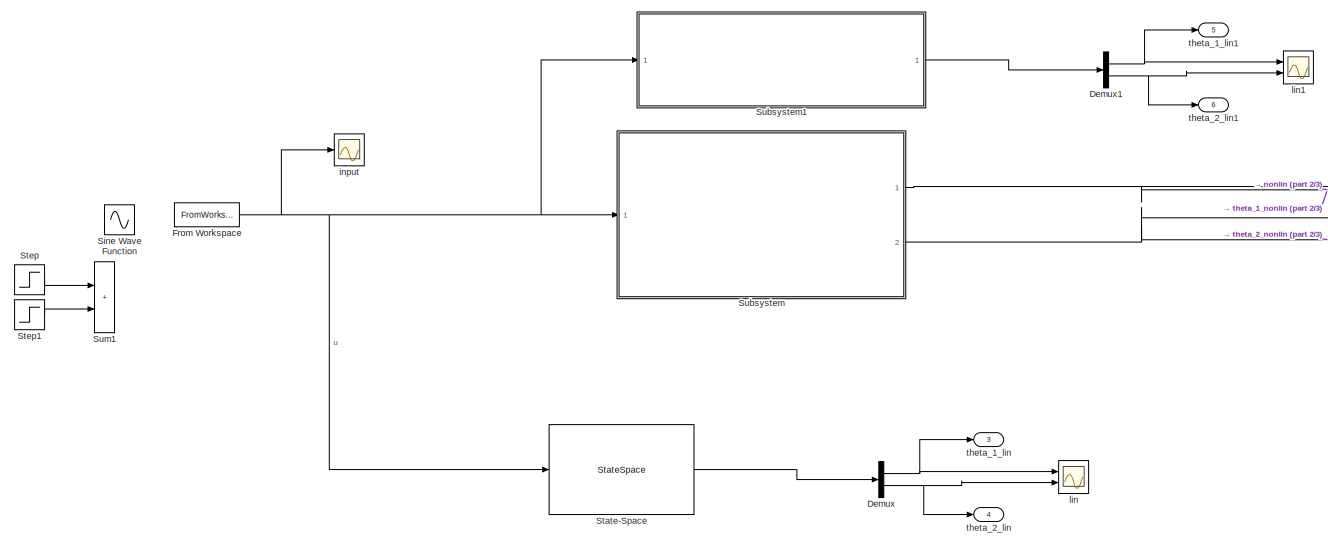
[diagram: root canvas - part 1/3, top left region]
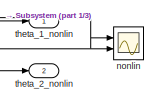
[diagram: root canvas - part 2/3, top right region]
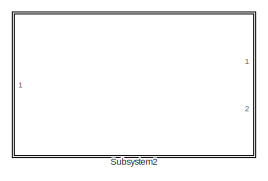
[diagram: root canvas - part 3/3, bottom right region]
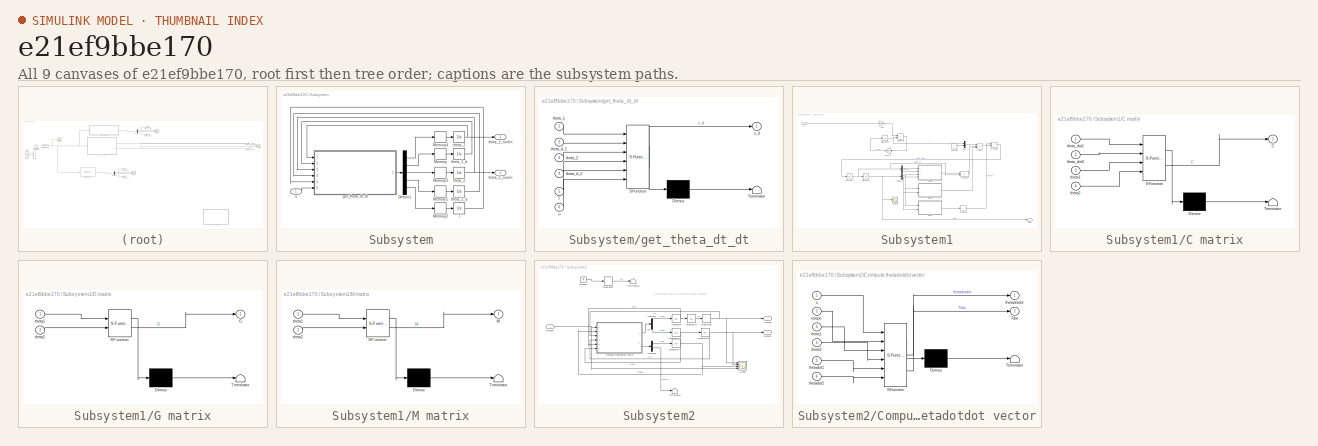
[diagram: thumbnail index - all 9 canvases of the model, root first then tree order]
MODEL mdl_e21ef9bbe170
KIND model
CONFIG AbsTol = auto
CONFIG EnableMultiTasking = off
CONFIG FixedStep = auto
CONFIG MaxStep = auto
CONFIG MinStep = auto
CONFIG RelTol = 1e-3
CONFIG SampleTimeConstraint = Unconstrained
CONFIG SolverName = VariableStepAuto
CONFIG StartTime = 0.0
CONFIG StopTime = 10.0
BLOCK [Demux] Demux
  Outputs = 2
  Ports = [1, 2]
BLOCK [Demux] Demux1
  Outputs = 2
  Ports = [1, 2]
BLOCK [FromWorkspace] From Workspace
  SampleTime = -1
BLOCK [Sin] Sine Wave Function
  Amplitude = 0.05
  Frequency = 2*pi*2
  Ports = [0, 1]
  SampleTime = 0.001
BLOCK [StateSpace] State-Space
  A = A
  B = B
  C = C
  D = D
  InitialCondition = x_op-x_op
  Ports = [1, 1]
BLOCK [Step] Step
  Time = 0
BLOCK [Step] Step1
  After = -1
  Time = 0.05
BLOCK [SubSystem] Subsystem
  Ports = [1, 2]
  RequestExecContextInheritance = off
BLOCK [Demux] Subsystem/Demux1
  Outputs = 5
  Ports = [1, 5]
BLOCK [Memory] Subsystem/Memory
BLOCK [Memory] Subsystem/Memory1
BLOCK [Memory] Subsystem/Memory2
BLOCK [Memory] Subsystem/Memory3
BLOCK [Memory] Subsystem/Memory4
BLOCK [Integrator] Subsystem/T
  Ports = [1, 1]
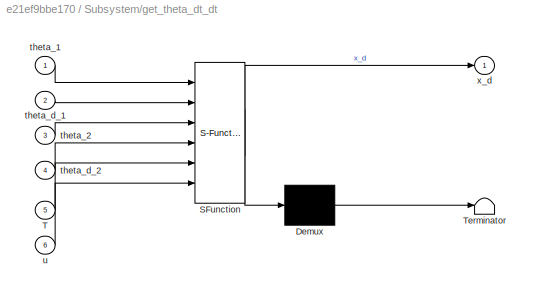
BLOCK [SubSystem] Subsystem/get_theta_dt_dt
  ErrorFcn = Stateflow.Translate.translate
  PermitHierarchicalResolution = ExplicitOnly
  Ports = [6, 1]
  RequestExecContextInheritance = off
  SFBlockType = MATLAB Function
  TreatAsAtomicUnit = on
BLOCK [Demux] Subsystem/get_theta_dt_dt/ Demux 
  Outputs = 1
  Ports = [1, 1]
BLOCK [S-Function] Subsystem/get_theta_dt_dt/ SFunction 
  EnableBusSupport = on
  FunctionName = sf_sfun
  PortCounts = [6 2]
  Ports = [6, 2]
  SFcnIsStateOwnerBlock = off
  SFunctionDeploymentMode = off
  Tag = Stateflow S-Function 22
BLOCK [Terminator] Subsystem/get_theta_dt_dt/ Terminator 
BLOCK [Inport] Subsystem/get_theta_dt_dt/T
  Port = 5
BLOCK [Inport] Subsystem/get_theta_dt_dt/theta_1
BLOCK [Inport] Subsystem/get_theta_dt_dt/theta_2
  Port = 3
BLOCK [Inport] Subsystem/get_theta_dt_dt/theta_d_1
  Port = 2
BLOCK [Inport] Subsystem/get_theta_dt_dt/theta_d_2
  Port = 4
BLOCK [Inport] Subsystem/get_theta_dt_dt/u
  Port = 6
BLOCK [Outport] Subsystem/get_theta_dt_dt/x_d
  VectorParamsAs1DForOutWhenUnconnected = off
BLOCK [Integrator] Subsystem/theta_1
  InitialCondition = theta_1_0
  Ports = [1, 1]
BLOCK [Integrator] Subsystem/theta_1_d
  Ports = [1, 1]
BLOCK [Outport] Subsystem/theta_1_nonlin
BLOCK [Integrator] Subsystem/theta_2
  InitialCondition = theta_2_0
  Ports = [1, 1]
BLOCK [Integrator] Subsystem/theta_2_d
  Ports = [1, 1]
BLOCK [Outport] Subsystem/theta_2_nonlin
  Port = 2
BLOCK [Inport] Subsystem/u
BLOCK [SubSystem] Subsystem1
  Ports = [1, 1]
  RequestExecContextInheritance = off
BLOCK [Sum] Subsystem1/Add1
  IconShape = rectangular
  Inputs = +--
  Ports = [3, 1]
BLOCK [SubSystem] Subsystem1/C matrix
  ErrorFcn = Stateflow.Translate.translate
  PermitHierarchicalResolution = ExplicitOnly
  Ports = [4, 1]
  RequestExecContextInheritance = off
  SFBlockType = MATLAB Function
  TreatAsAtomicUnit = on
BLOCK [Demux] Subsystem1/C matrix/ Demux 
  Outputs = 1
  Ports = [1, 1]
BLOCK [S-Function] Subsystem1/C matrix/ SFunction 
  EnableBusSupport = on
  FunctionName = sf_sfun
  Parameters = P3,params
  PortCounts = [4 2]
  Ports = [4, 2]
  SFcnIsStateOwnerBlock = off
  SFunctionDeploymentMode = off
  Tag = Stateflow S-Function 4
BLOCK [Terminator] Subsystem1/C matrix/ Terminator 
BLOCK [Outport] Subsystem1/C matrix/C
BLOCK [Inport] Subsystem1/C matrix/theta1
  Port = 3
BLOCK [Inport] Subsystem1/C matrix/theta2
  Port = 4
BLOCK [Inport] Subsystem1/C matrix/theta_dot1
BLOCK [Inport] Subsystem1/C matrix/theta_dot2
  Port = 2
BLOCK [Constant] Subsystem1/Constant9
  Value = 0
BLOCK [Demux] Subsystem1/Demux3
  Outputs = 2
  Ports = [1, 2]
BLOCK [Demux] Subsystem1/Demux4
  Outputs = 2
  Ports = [1, 2]
BLOCK [SubSystem] Subsystem1/G matrix
  ErrorFcn = Stateflow.Translate.translate
  PermitHierarchicalResolution = ExplicitOnly
  Ports = [2, 1]
  RequestExecContextInheritance = off
  SFBlockType = MATLAB Function
  TreatAsAtomicUnit = on
BLOCK [Demux] Subsystem1/G matrix/ Demux 
  Outputs = 1
  Ports = [1, 1]
BLOCK [S-Function] Subsystem1/G matrix/ SFunction 
  EnableBusSupport = on
  FunctionName = sf_sfun
  Parameters = g1,g2
  PortCounts = [2 2]
  Ports = [2, 2]
  SFcnIsStateOwnerBlock = off
  SFunctionDeploymentMode = off
  Tag = Stateflow S-Function 5
BLOCK [Terminator] Subsystem1/G matrix/ Terminator 
BLOCK [Outport] Subsystem1/G matrix/G
BLOCK [Inport] Subsystem1/G matrix/theta1
BLOCK [Inport] Subsystem1/G matrix/theta2
  Port = 2
BLOCK [Integrator] Subsystem1/Integrator3
  Ports = [1, 1]
BLOCK [Integrator] Subsystem1/Integrator4
  InitialCondition = [theta_1_0, theta_2_0]
  Ports = [1, 1]
BLOCK [Integrator] Subsystem1/Integrator5
  Ports = [1, 1]
BLOCK [Gain] Subsystem1/Km
  Gain = params(12)
BLOCK [SubSystem] Subsystem1/M matrix
  ErrorFcn = Stateflow.Translate.translate
  PermitHierarchicalResolution = ExplicitOnly
  Ports = [2, 1]
  RequestExecContextInheritance = off
  SFBlockType = MATLAB Function
  TreatAsAtomicUnit = on
BLOCK [Demux] Subsystem1/M matrix/ Demux 
  Outputs = 1
  Ports = [1, 1]
BLOCK [S-Function] Subsystem1/M matrix/ SFunction 
  EnableBusSupport = on
  FunctionName = sf_sfun
  Parameters = P1,P2,P3
  PortCounts = [2 2]
  Ports = [2, 2]
  SFcnIsStateOwnerBlock = off
  SFunctionDeploymentMode = off
  Tag = Stateflow S-Function 6
BLOCK [Terminator] Subsystem1/M matrix/ Terminator 
BLOCK [Outport] Subsystem1/M matrix/M
BLOCK [Inport] Subsystem1/M matrix/theta1
BLOCK [Inport] Subsystem1/M matrix/theta2
  Port = 2
BLOCK [Mux] Subsystem1/Mux1
  DisplayOption = bar
  Inputs = 2
  Ports = [2, 1]
BLOCK [Product] Subsystem1/Product1
  Inputs = **
  Multiplication = Matrix(*)
  Ports = [2, 1]
BLOCK [Product] Subsystem1/Product4
  Inputs = /
  Multiplication = Matrix(*)
  Ports = [1, 1]
BLOCK [Product] Subsystem1/Product5
  Inputs = **
  Multiplication = Matrix(*)
  Ports = [2, 1]
BLOCK [Scope] Subsystem1/Scope1
  Floating = off
  NumInputPorts = 1
  Ports = [1]
  ScopeSpecificationString = Simulink.scopes.TimeScopeBlockCfg('CurrentConfiguration', extmgr.ConfigurationSet(extmgr.Configuration('Core','General UI',true),extmgr.Configuration('Core','Source UI',true),extmgr.Configuration('Sources','WiredSimulink',true,'DataLoggingVariableName','ScopeData1'),extmgr.Configuration('Visuals','Time Domain',true,'SerializedDisplays',{struct('MinYLimReal','-9.21174','MaxYLimReal','7.66748','YLab...<+1428ch>
BLOCK [Sum] Subsystem1/Subtract1
  IconShape = rectangular
  Inputs = +-
  Ports = [2, 1]
BLOCK [Gain] Subsystem1/tau_e
  Gain = 1/params(13)
BLOCK [Outport] Subsystem1/theta
BLOCK [Inport] Subsystem1/u
BLOCK [SubSystem] Subsystem2
  Commented = on
  Ports = [1, 2]
  RequestExecContextInheritance = off
BLOCK [Backlash] Subsystem2/Backlash1
  BacklashWidth = 0.0087
BLOCK [Backlash] Subsystem2/Backlash2
  BacklashWidth = 0.0087
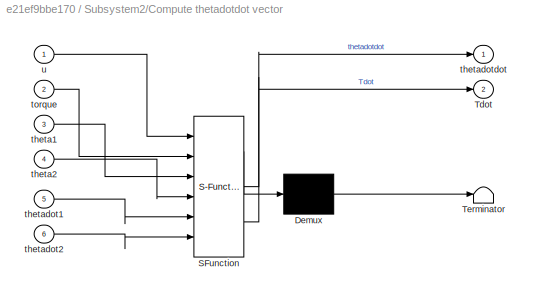
BLOCK [SubSystem] Subsystem2/Compute thetadotdot vector
  ErrorFcn = Stateflow.Translate.translate
  PermitHierarchicalResolution = ExplicitOnly
  Ports = [6, 2]
  RequestExecContextInheritance = off
  SFBlockType = MATLAB Function
  TreatAsAtomicUnit = on
BLOCK [Demux] Subsystem2/Compute thetadotdot vector/ Demux 
  Outputs = 1
  Ports = [1, 1]
BLOCK [S-Function] Subsystem2/Compute thetadotdot vector/ SFunction 
  EnableBusSupport = on
  FunctionName = sf_sfun
  Parameters = I1,I2,b1,b2,c1,c2,km,l1,l2,m1,m2,tau_e
  PortCounts = [6 3]
  Ports = [6, 3]
  SFcnIsStateOwnerBlock = off
  SFunctionDeploymentMode = off
  Tag = Stateflow S-Function 2
BLOCK [Terminator] Subsystem2/Compute thetadotdot vector/ Terminator 
BLOCK [Outport] Subsystem2/Compute thetadotdot vector/Tdot
  Port = 2
BLOCK [Inport] Subsystem2/Compute thetadotdot vector/theta1
  Port = 3
BLOCK [Inport] Subsystem2/Compute thetadotdot vector/theta2
  Port = 4
BLOCK [Inport] Subsystem2/Compute thetadotdot vector/thetadot1
  Port = 5
BLOCK [Inport] Subsystem2/Compute thetadotdot vector/thetadot2
  Port = 6
BLOCK [Outport] Subsystem2/Compute thetadotdot vector/thetadotdot
BLOCK [Inport] Subsystem2/Compute thetadotdot vector/torque
  Port = 2
BLOCK [Inport] Subsystem2/Compute thetadotdot vector/u
BLOCK [Demux] Subsystem2/Demux2
  Outputs = 2
  Ports = [1, 2]
BLOCK [Demux] Subsystem2/Demux3
  Outputs = 2
  Ports = [1, 2]
BLOCK [Ground] Subsystem2/Ground
BLOCK [Integrator] Subsystem2/Integrator
  Ports = [1, 1]
BLOCK [Integrator] Subsystem2/Integrator1
  Ports = [1, 1]
BLOCK [Integrator] Subsystem2/Integrator2
  InitialCondition = theta_1_0
  Ports = [1, 1]
BLOCK [Integrator] Subsystem2/Integrator3
  InitialCondition = theta_2_0
  Ports = [1, 1]
BLOCK [Integrator] Subsystem2/Integrator4
  Ports = [1, 1]
BLOCK [Outport] Subsystem2/Output
BLOCK [Outport] Subsystem2/Output1
  Port = 2
BLOCK [Scope] Subsystem2/Scope
  Floating = off
  NumInputPorts = 4
  Ports = [4]
  ScopeSpecificationString = Simulink.scopes.TimeScopeBlockCfg('CurrentConfiguration', extmgr.ConfigurationSet(extmgr.Configuration('Core','General UI',true),extmgr.Configuration('Core','Source UI',true),extmgr.Configuration('Sources','WiredSimulink',true,'DataLoggingVariableName','ScopeData1'),extmgr.Configuration('Visuals','Time Domain',true,'SerializedDisplays',{struct('MinYLimReal','-3.26843','MaxYLimReal','28.18469','YLa...<+2660ch>
BLOCK [Terminator] Subsystem2/Terminator
BLOCK [Terminator] Subsystem2/Terminator1
BLOCK [Inport] Subsystem2/voltage
BLOCK [Sum] Sum1
  IconShape = rectangular
  Ports = [2, 1]
BLOCK [Scope] input
  Floating = off
  NumInputPorts = 1
  Ports = [1]
  ScopeSpecificationString = Simulink.scopes.TimeScopeBlockCfg('CurrentConfiguration', extmgr.ConfigurationSet(extmgr.Configuration('Core','General UI',true),extmgr.Configuration('Core','Source UI',true),extmgr.Configuration('Sources','WiredSimulink',true,'DataLoggingVariableName','ScopeData1'),extmgr.Configuration('Visuals','Time Domain',true,'SerializedDisplays',{struct('MinYLimReal','-0.0625','MaxYLimReal','0.0625','YLabel...<+1394ch>
BLOCK [Scope] lin
  Floating = off
  NumInputPorts = 2
  Ports = [2]
  ScopeSpecificationString = Simulink.scopes.TimeScopeBlockCfg('CurrentConfiguration', extmgr.ConfigurationSet(extmgr.Configuration('Core','General UI',true),extmgr.Configuration('Core','Source UI',true),extmgr.Configuration('Sources','WiredSimulink',true),extmgr.Configuration('Visuals','Time Domain',true,'SerializedDisplays',{struct('MinYLimReal','2.54303','MaxYLimReal','3.23909','YLabelReal','','MinYLimMag','2.54303','MaxYL...<+2114ch>
BLOCK [Scope] lin1
  Floating = off
  NumInputPorts = 2
  Ports = [2]
  ScopeSpecificationString = Simulink.scopes.TimeScopeBlockCfg('CurrentConfiguration', extmgr.ConfigurationSet(extmgr.Configuration('Core','General UI',true),extmgr.Configuration('Core','Source UI',true),extmgr.Configuration('Sources','WiredSimulink',true,'DataLoggingVariableName','ScopeData2'),extmgr.Configuration('Visuals','Time Domain',true,'SerializedDisplays',{struct('MinYLimReal','2.54303','MaxYLimReal','3.23909','YLabe...<+2153ch>
BLOCK [Scope] nonlin
  Floating = off
  NumInputPorts = 2
  Ports = [2]
  ScopeSpecificationString = Simulink.scopes.TimeScopeBlockCfg('CurrentConfiguration', extmgr.ConfigurationSet(extmgr.Configuration('Core','General UI',true),extmgr.Configuration('Core','Source UI',true),extmgr.Configuration('Sources','WiredSimulink',true,'DataLoggingVariableName','ScopeData1'),extmgr.Configuration('Visuals','Time Domain',true,'SerializedDisplays',{struct('MinYLimReal','2.36604','MaxYLimReal','4.12385','YLabe...<+2177ch>
BLOCK [Outport] theta_1_lin
  NameLocation = right
  Port = 3
BLOCK [Outport] theta_1_lin1
  NameLocation = right
  Port = 5
BLOCK [Outport] theta_1_nonlin
  NameLocation = right
BLOCK [Outport] theta_2_lin
  NameLocation = right
  Port = 4
BLOCK [Outport] theta_2_lin1
  NameLocation = right
  Port = 6
BLOCK [Outport] theta_2_nonlin
  NameLocation = right
  Port = 2
ANNOTATION Subsystem2: CHANGE INITIAL CONDITIONS HERE
NET Demux1:1 -> lin1:1, theta_1_lin1:1
NET Demux1:2 -> lin1:2, theta_2_lin1:1
NET Demux:1 -> lin:1, theta_1_lin:1
NET Demux:2 -> lin:2, theta_2_lin:1
NET From Workspace:1 -> State-Space:1, Subsystem1:1, Subsystem:1, input:1
LINE State-Space:1 -> Demux:1
LINE Step1:1 -> Sum1:2
LINE Step:1 -> Sum1:1
LINE Subsystem/Demux1:1 -> Subsystem/Memory4:1
LINE Subsystem/Demux1:2 -> Subsystem/Memory:1
LINE Subsystem/Demux1:3 -> Subsystem/Memory3:1
LINE Subsystem/Demux1:4 -> Subsystem/Memory1:1
LINE Subsystem/Demux1:5 -> Subsystem/Memory2:1
LINE Subsystem/Memory1:1 -> Subsystem/theta_2_d:1
LINE Subsystem/Memory2:1 -> Subsystem/T:1
LINE Subsystem/Memory3:1 -> Subsystem/theta_2:1
LINE Subsystem/Memory4:1 -> Subsystem/theta_1:1
LINE Subsystem/Memory:1 -> Subsystem/theta_1_d:1
LINE Subsystem/T:1 -> Subsystem/get_theta_dt_dt:5
LINE Subsystem/get_theta_dt_dt:1 -> Subsystem/Demux1:1
NET Subsystem/theta_1:1 -> Subsystem/get_theta_dt_dt:1, Subsystem/theta_1_nonlin:1
LINE Subsystem/theta_1_d:1 -> Subsystem/get_theta_dt_dt:2
NET Subsystem/theta_2:1 -> Subsystem/get_theta_dt_dt:3, Subsystem/theta_2_nonlin:1
LINE Subsystem/theta_2_d:1 -> Subsystem/get_theta_dt_dt:4
LINE Subsystem/u:1 -> Subsystem/get_theta_dt_dt:6
LINE Subsystem1/Add1:1 -> Subsystem1/Product5:2
LINE Subsystem1/C matrix:1 -> Subsystem1/Product1:1
LINE Subsystem1/Constant9:1 -> Subsystem1/Mux1:2
LINE Subsystem1/Demux3:1 -> Subsystem1/C matrix:1
LINE Subsystem1/Demux3:2 -> Subsystem1/C matrix:2
NET Subsystem1/Demux4:1 -> Subsystem1/C matrix:3, Subsystem1/G matrix:1, Subsystem1/M matrix:1
NET Subsystem1/Demux4:2 -> Subsystem1/C matrix:4, Subsystem1/G matrix:2, Subsystem1/M matrix:2
LINE Subsystem1/G matrix:1 -> Subsystem1/Add1:3
NET Subsystem1/Integrator3:1 -> Subsystem1/Demux3:1, Subsystem1/Integrator4:1, Subsystem1/Product1:2
NET Subsystem1/Integrator4:1 -> Subsystem1/Demux4:1, Subsystem1/Scope1:1, Subsystem1/theta:1
NET Subsystem1/Integrator5:1 -> Subsystem1/Mux1:1, Subsystem1/Subtract1:2
LINE Subsystem1/Km:1 -> Subsystem1/Subtract1:1
LINE Subsystem1/M matrix:1 -> Subsystem1/Product4:1
LINE Subsystem1/Mux1:1 -> Subsystem1/Add1:1
LINE Subsystem1/Product1:1 -> Subsystem1/Add1:2
LINE Subsystem1/Product4:1 -> Subsystem1/Product5:1
LINE Subsystem1/Product5:1 -> Subsystem1/Integrator3:1
LINE Subsystem1/Subtract1:1 -> Subsystem1/tau_e:1
LINE Subsystem1/tau_e:1 -> Subsystem1/Integrator5:1
LINE Subsystem1/u:1 -> Subsystem1/Km:1
LINE Subsystem1:1 -> Demux1:1
NET Subsystem2/Backlash1:1 -> Subsystem2/Compute thetadotdot vector:3, Subsystem2/Output:1, Subsystem2/Scope:1
LINE Subsystem2/Backlash2:1 -> Subsystem2/Terminator1:1
LINE Subsystem2/Compute thetadotdot vector:1 -> Subsystem2/Demux2:1
LINE Subsystem2/Compute thetadotdot vector:2 -> Subsystem2/Demux3:1
LINE Subsystem2/Demux2:1 -> Subsystem2/Integrator:1
LINE Subsystem2/Demux2:2 -> Subsystem2/Integrator1:1
LINE Subsystem2/Demux3:1 -> Subsystem2/Integrator4:1
LINE Subsystem2/Demux3:2 -> Subsystem2/Terminator:1
LINE Subsystem2/Ground:1 -> Subsystem2/Backlash2:1
NET Subsystem2/Integrator1:1 -> Subsystem2/Compute thetadotdot vector:6, Subsystem2/Integrator3:1
LINE Subsystem2/Integrator2:1 -> Subsystem2/Backlash1:1
NET Subsystem2/Integrator3:1 -> Subsystem2/Compute thetadotdot vector:4, Subsystem2/Output1:1, Subsystem2/Scope:2
NET Subsystem2/Integrator4:1 -> Subsystem2/Compute thetadotdot vector:2, Subsystem2/Scope:3
NET Subsystem2/Integrator:1 -> Subsystem2/Compute thetadotdot vector:5, Subsystem2/Integrator2:1
NET Subsystem2/voltage:1 -> Subsystem2/Compute thetadotdot vector:1, Subsystem2/Scope:4
NET Subsystem:1 -> nonlin:1, theta_1_nonlin:1
NET Subsystem:2 -> nonlin:2, theta_2_nonlin:1
note: NET lines group one-source signal fan-out (src -> all destinations, sorted); 1:1 wires keep LINE
CHART Subsystem2/Compute thetadotdot vector states=1 transitions=1
  STATE_LABEL 'eML_blk_kernel()'
  STATE_LABEL 'SCRIPT:\nfunction [thetadotdot, Tdot]  = get_thetadotdot(u, torque, theta1, theta2, thetadot1, thetadot2, l1, l2, m1, m2, c1, c2, I1, I2, b1, b2, km, tau_e)\n%% Parameters (SI Units)\ng = 9.81;\n%% Variables of the model\nth1 = theta1;\nth2 = theta2;\nth1d = thetadot1;\nth2d = thetadot2;\nthd_vec = [th1d ; th2d];\nthetadotdot = [0 ; 0];\nT_vec = [torque ; 0];\n\n%% Matrices of physical model\nP1 = m1 * c1 * c1 ...<+495ch>'
CHART Subsystem1/C matrix states=1 transitions=1
  STATE_LABEL 'eML_blk_kernel()'
  STATE_LABEL 'SCRIPT:\nfunction C = C(theta_dot1, theta_dot2, theta1, theta2, params, P3)\nc00 = params(10) - P3 * theta_dot2 * sin(theta2);\nc01 = -P3 * (theta_dot1 + theta_dot2) * sin(theta2);\nc10 = P3 * theta_dot1 * sin(theta2);\nc11 = params(11);\n\nC = [c00 c01;\n     c10 c11];\n'
CHART Subsystem1/G matrix states=1 transitions=1
  STATE_LABEL 'eML_blk_kernel()'
  STATE_LABEL 'SCRIPT:\nfunction G = G(theta1, theta2, g1, g2)\nG00 = -g1 * sin(theta1) - g2 * sin(theta1 + theta2);\nG01 = -g2 * sin(theta1 + theta2);\n\nG = [G00 G01];\n'
CHART Subsystem1/M matrix states=1 transitions=1
  STATE_LABEL 'eML_blk_kernel()'
  STATE_LABEL 'SCRIPT:\nfunction M = fcn(theta1, theta2, P1, P2, P3)\nM00 = P1 + P2 + 2 * P3 * cos(theta2);\nM01 = P2 + P3 * cos(theta2);\nM10 = M01;\nM11 = P2;\n\nM = [M00 M01;\n     M10 M11];\n'
CHART Subsystem/get_theta_dt_dt states=1 transitions=1
  STATE_LABEL 'eML_blk_kernel()'
  STATE_LABEL 'SCRIPT:\nfunction x_d = get_theta_dt_dt(theta_1, theta_d_1, theta_2, theta_d_2, T, u)\n\n% params = [-0.04, 0.06, 0.074, 0.00002, 4.8, 0.00077, 50, 0.03];\nparams = [0 -0.032, 0.04609, 0.088800, 0.000099, 6.301237, 0.000027, 40.09531, 0.01537];\n\n% varying variables\nc_1 = params(2);\nc_2 = params(3);\nI_1 = params(4);\nI_2 = params(5);\nb_1 = params(6);\nb_2 = params(7);\nk_m = params(8);\ntau_e = params(9);\n...<+3608ch>'
CHART  states=0 transitions=0
CHART  states=0 transitions=0
CHART  states=0 transitions=0
CHART  states=0 transitions=0
CHART  states=0 transitions=0
